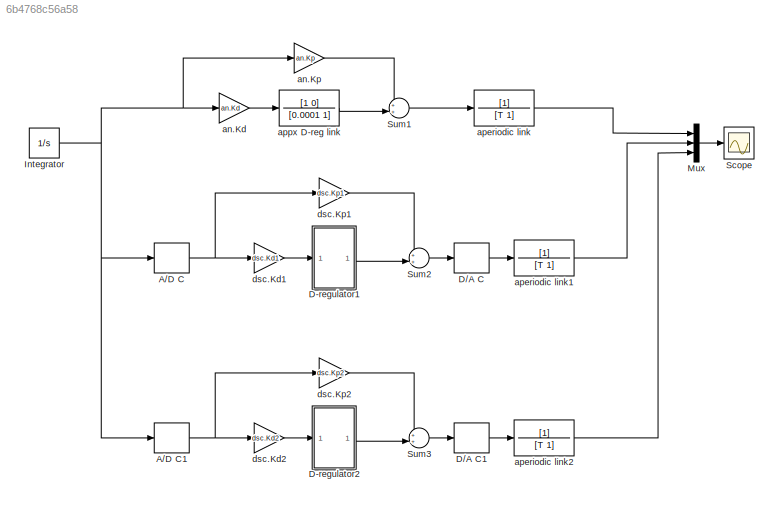
MODEL slx_6b4768c56a58
KIND model
CONFIG AbsTol = auto
CONFIG EnableMultiTasking = off
CONFIG FixedStep = To/100
CONFIG MaxStep = To/100
CONFIG MinStep = auto
CONFIG RelTol = 1e-3
CONFIG SampleTimeConstraint = Unconstrained
CONFIG SolverName = ode23tb
CONFIG StartTime = 0.0
CONFIG StopTime = Tmdl
BLOCK [ZeroOrderHold] A//D C
  SampleTime = To
BLOCK [ZeroOrderHold] A//D C1
  SampleTime = To
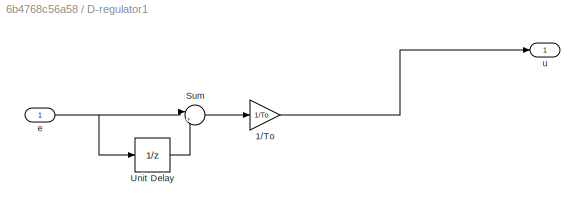
BLOCK [SubSystem] D-regulator1
BLOCK [Gain] D-regulator1/1//To
  Gain = 1/To
BLOCK [Sum] D-regulator1/Sum
  Inputs = |+-
BLOCK [UnitDelay] D-regulator1/Unit Delay
  HasFrameUpgradeWarning = on
  SampleTime = To
BLOCK [Inport] D-regulator1/e
BLOCK [Outport] D-regulator1/u
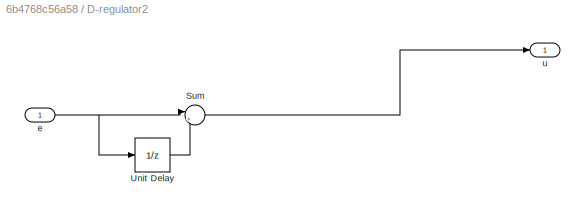
BLOCK [SubSystem] D-regulator2
BLOCK [Sum] D-regulator2/Sum
  Inputs = |+-
BLOCK [UnitDelay] D-regulator2/Unit Delay
  HasFrameUpgradeWarning = on
  SampleTime = To
BLOCK [Inport] D-regulator2/e
BLOCK [Outport] D-regulator2/u
BLOCK [ZeroOrderHold] D//A C
  SampleTime = To
BLOCK [ZeroOrderHold] D//A C1
  SampleTime = To
BLOCK [Integrator] Integrator
  InitialCondition = 1
BLOCK [Mux] Mux
  DisplayOption = bar
  Inputs = 3
BLOCK [Scope] Scope
  Floating = off
  NumInputPorts = 1
  ScopeSpecificationString = Simulink.scopes.TimeScopeBlockCfg('CurrentConfiguration', extmgr.ConfigurationSet(extmgr.Configuration('Core','General UI',true),extmgr.Configuration('Core','Source UI',true),extmgr.Configuration('Sources','WiredSimulink',true,'DataLoggingVariableName','y','DataLogging',true,'DataLoggingSaveFormat','Array'),extmgr.Configuration('Visuals','Time Domain',true,'SerializedDisplays',{struct('MinYLimReal...<+1392ch>
BLOCK [Sum] Sum1
  Inputs = ++|
BLOCK [Sum] Sum2
  Inputs = ++|
BLOCK [Sum] Sum3
  Inputs = ++|
BLOCK [Gain] an.Kd
  Gain = an.Kd
BLOCK [Gain] an.Kp
  Gain = an.Kp
BLOCK [TransferFcn] aperiodic link
  Denominator = [T 1]
BLOCK [TransferFcn] aperiodic link1
  Denominator = [T 1]
BLOCK [TransferFcn] aperiodic link2
  Denominator = [T 1]
BLOCK [TransferFcn] appx D-reg link
  Denominator = [0.0001 1]
  Numerator = [1 0]
BLOCK [Gain] dsc.Kd1
  Gain = dsc.Kd1
BLOCK [Gain] dsc.Kd2
  Gain = dsc.Kd2
BLOCK [Gain] dsc.Kp1
  Gain = dsc.Kp1
BLOCK [Gain] dsc.Kp2
  Gain = dsc.Kp2
NET A//D C1:1 -> dsc.Kd2:1, dsc.Kp2:1
NET A//D C:1 -> dsc.Kd1:1, dsc.Kp1:1
LINE D-regulator1/1//To:1 -> D-regulator1/u:1
LINE D-regulator1/Sum:1 -> D-regulator1/1//To:1
LINE D-regulator1/Unit Delay:1 -> D-regulator1/Sum:2
NET D-regulator1/e:1 -> D-regulator1/Sum:1, D-regulator1/Unit Delay:1
LINE D-regulator1:1 -> Sum2:2
LINE D-regulator2/Sum:1 -> D-regulator2/u:1
LINE D-regulator2/Unit Delay:1 -> D-regulator2/Sum:2
NET D-regulator2/e:1 -> D-regulator2/Sum:1, D-regulator2/Unit Delay:1
LINE D-regulator2:1 -> Sum3:2
LINE D//A C1:1 -> aperiodic link2:1
LINE D//A C:1 -> aperiodic link1:1
NET Integrator:1 -> A//D C1:1, A//D C:1, an.Kd:1, an.Kp:1
LINE Mux:1 -> Scope:1
LINE Sum1:1 -> aperiodic link:1
LINE Sum2:1 -> D//A C:1
LINE Sum3:1 -> D//A C1:1
LINE an.Kd:1 -> appx D-reg link:1
LINE an.Kp:1 -> Sum1:1
LINE aperiodic link1:1 -> Mux:2
LINE aperiodic link2:1 -> Mux:3
LINE aperiodic link:1 -> Mux:1
LINE appx D-reg link:1 -> Sum1:2
LINE dsc.Kd1:1 -> D-regulator1:1
LINE dsc.Kd2:1 -> D-regulator2:1
LINE dsc.Kp1:1 -> Sum2:1
LINE dsc.Kp2:1 -> Sum3:1
note: NET lines group one-source signal fan-out (src -> all destinations, sorted); 1:1 wires keep LINE
